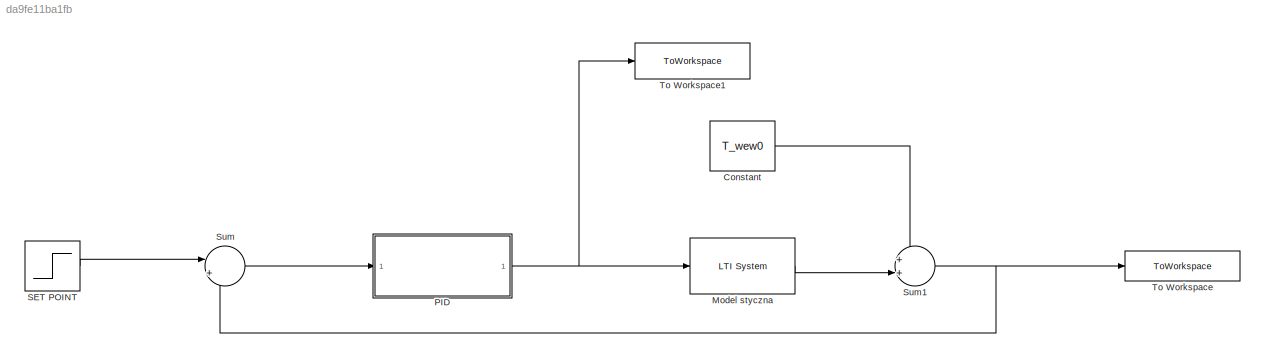
MODEL slx_da9fe11ba1fb
KIND model
CONFIG AbsTol = auto
CONFIG EnableMultiTasking = off
CONFIG FixedStep = auto
CONFIG MaxStep = auto
CONFIG MinStep = auto
CONFIG RelTol = 1e-3
CONFIG SampleTimeConstraint = Unconstrained
CONFIG SolverName = VariableStepAuto
CONFIG StartTime = 0.0
CONFIG StopTime = 10.0
BLOCK [Constant] Constant
  Value = T_wew0
BLOCK [Reference] Model styczna  REF=cstblocks/LTI System
  SourceBlock = cstblocks/LTI System
  SourceType = LTI Block
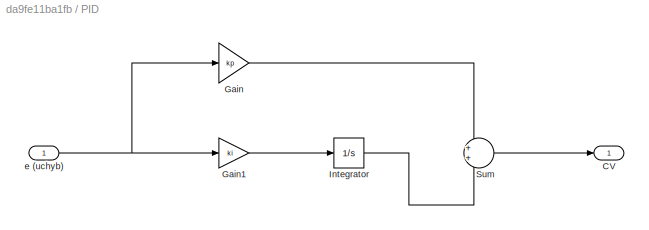
BLOCK [SubSystem] PID
BLOCK [Outport] PID/CV
BLOCK [Gain] PID/Gain
  Gain = kp
BLOCK [Gain] PID/Gain1
  Gain = ki
BLOCK [Integrator] PID/Integrator
BLOCK [Sum] PID/Sum
BLOCK [Inport] PID/e (uchyb)
BLOCK [Step] SET POINT
  After = T_wew_SP_0 + delta_Twew_SP
  Before = T_wew_SP_0
  SampleTime = 0
  Time = t_wew_SP
BLOCK [Sum] Sum
  Inputs = |+-
BLOCK [Sum] Sum1
  Inputs = ++|
BLOCK [ToWorkspace] To Workspace
  FixptAsFi = on
  MaxDataPoints = inf
  SampleTime = -1
  VariableName = output
BLOCK [ToWorkspace] To Workspace1
  FixptAsFi = on
  MaxDataPoints = inf
  SampleTime = -1
  VariableName = styczna_cv
LINE Constant:1 -> Sum1:1
LINE Model styczna:1 -> Sum1:2
LINE PID/Gain1:1 -> PID/Integrator:1
LINE PID/Gain:1 -> PID/Sum:1
LINE PID/Integrator:1 -> PID/Sum:2
LINE PID/Sum:1 -> PID/CV:1
NET PID/e (uchyb):1 -> PID/Gain1:1, PID/Gain:1
NET PID:1 -> Model styczna:1, To Workspace1:1
LINE SET POINT:1 -> Sum:1
NET Sum1:1 -> Sum:2, To Workspace:1
LINE Sum:1 -> PID:1
note: NET lines group one-source signal fan-out (src -> all destinations, sorted); 1:1 wires keep LINE
